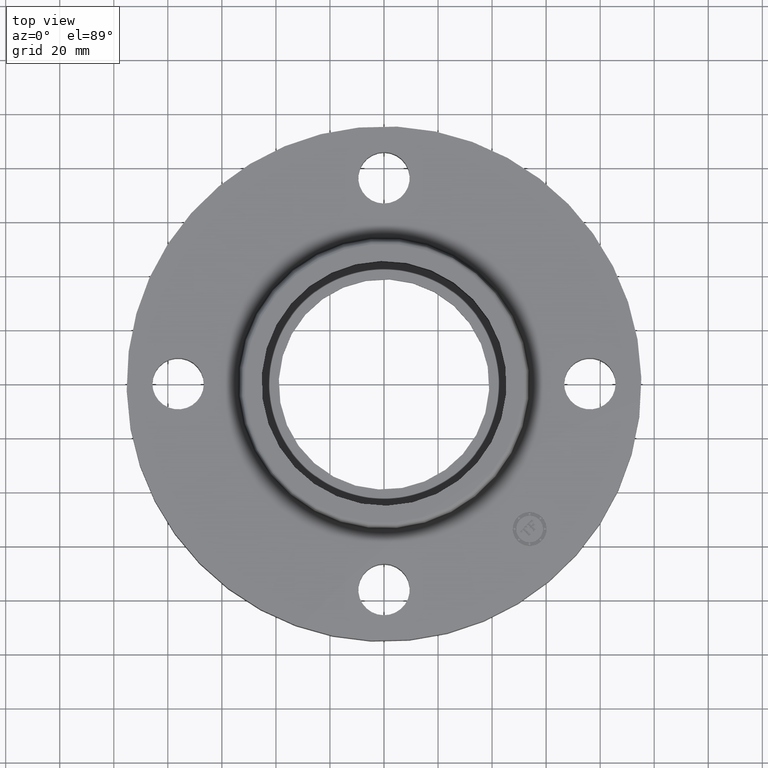
[diagram: clean part render]
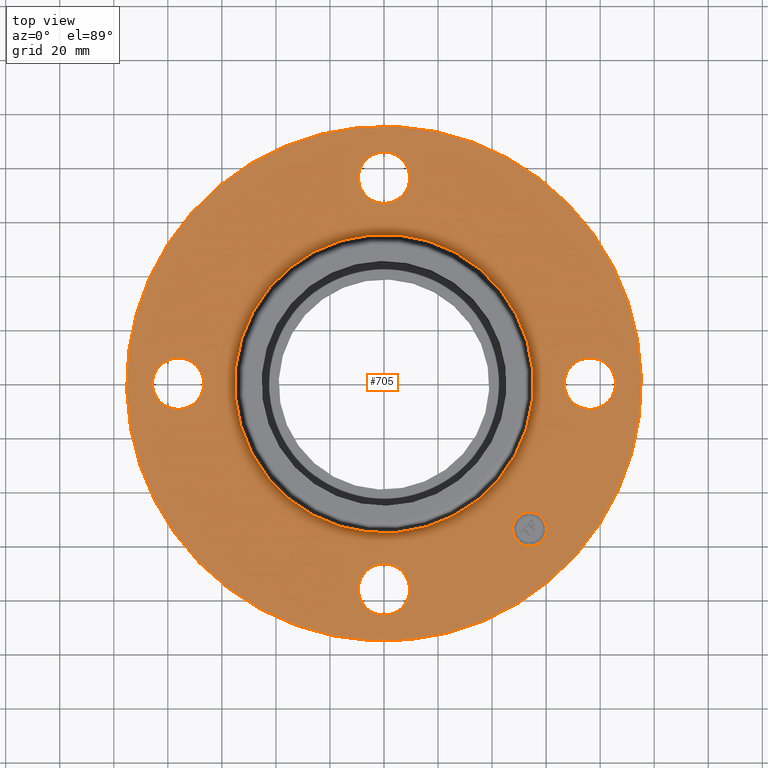
[diagram: same view with one face highlighted and labeled with its STEP entity id]
A machine part, top view. The second image highlights one B-rep face of the part: STEP entity #705.
In plain terms, the highlighted planar face has unit normal (0, 0, -1).
Its self-contained STEP definition (entity closure, byte-faithful):
#257=AXIS2_PLACEMENT_3D('Circle Axis2P3D',#255,#256,$) ;
#276=AXIS2_PLACEMENT_3D('Circle Axis2P3D',#274,#275,$) ;
#293=AXIS2_PLACEMENT_3D('Circle Axis2P3D',#291,#292,$) ;
#328=AXIS2_PLACEMENT_3D('Circle Axis2P3D',#326,#327,$) ;
#478=AXIS2_PLACEMENT_3D('Circle Axis2P3D',#476,#477,$) ;
#490=AXIS2_PLACEMENT_3D('Circle Axis2P3D',#488,#489,$) ;
#521=AXIS2_PLACEMENT_3D('Circle Axis2P3D',#519,#520,$) ;
#533=AXIS2_PLACEMENT_3D('Circle Axis2P3D',#531,#532,$) ;
#564=AXIS2_PLACEMENT_3D('Circle Axis2P3D',#562,#563,$) ;
#576=AXIS2_PLACEMENT_3D('Circle Axis2P3D',#574,#575,$) ;
#607=AXIS2_PLACEMENT_3D('Circle Axis2P3D',#605,#606,$) ;
#619=AXIS2_PLACEMENT_3D('Circle Axis2P3D',#617,#618,$) ;
#661=AXIS2_PLACEMENT_3D('Plane Axis2P3D',#658,#659,#660) ;
#689=AXIS2_PLACEMENT_3D('Circle Axis2P3D',#687,#688,$) ;
#698=AXIS2_PLACEMENT_3D('Circle Axis2P3D',#696,#697,$) ;
#252=CARTESIAN_POINT('Vertex',(-1.79784576977,-3.2909346071,0.880000000004)) ;
#255=CARTESIAN_POINT('Axis2P3D Location',(0.,0.,0.880000000004)) ;
#259=CARTESIAN_POINT('Vertex',(1.79784576977,3.2909346071,0.880000000004)) ;
#274=CARTESIAN_POINT('Axis2P3D Location',(0.,0.,0.880000000004)) ;
#291=CARTESIAN_POINT('Axis2P3D Location',(0.,0.,0.880000000004)) ;
#295=CARTESIAN_POINT('Vertex',(1.0429164171,1.90904569627,0.880000000004)) ;
#297=CARTESIAN_POINT('Vertex',(-1.0429164171,-1.90904569627,0.880000000004)) ;
#326=CARTESIAN_POINT('Axis2P3D Location',(0.,0.,0.880000000004)) ;
#466=CARTESIAN_POINT('Vertex',(0.179784576977,3.32909346072,0.880000000004)) ;
#473=CARTESIAN_POINT('Vertex',(-0.179784576977,2.6709065393,0.880000000004)) ;
#476=CARTESIAN_POINT('Axis2P3D Location',(-5.51091059619E-016,3.00000000001,0.880000000004)) ;
#488=CARTESIAN_POINT('Axis2P3D Location',(-5.51091059619E-016,3.00000000001,0.880000000004)) ;
#509=CARTESIAN_POINT('Vertex',(-3.32909346072,0.179784576977,0.880000000004)) ;
#516=CARTESIAN_POINT('Vertex',(-2.6709065393,-0.179784576977,0.880000000004)) ;
#519=CARTESIAN_POINT('Axis2P3D Location',(-3.00000000001,-3.67394039746E-016,0.880000000004)) ;
#531=CARTESIAN_POINT('Axis2P3D Location',(-3.00000000001,-3.67394039746E-016,0.880000000004)) ;
#552=CARTESIAN_POINT('Vertex',(-0.179784576977,-3.32909346072,0.880000000004)) ;
#559=CARTESIAN_POINT('Vertex',(0.179784576977,-2.6709065393,0.880000000004)) ;
#562=CARTESIAN_POINT('Axis2P3D Location',(-3.7578544923E-016,-3.00000000001,0.880000000004)) ;
#574=CARTESIAN_POINT('Axis2P3D Location',(-3.7578544923E-016,-3.00000000001,0.880000000004)) ;
#595=CARTESIAN_POINT('Vertex',(2.6709065393,0.179784576977,0.880000000004)) ;
#602=CARTESIAN_POINT('Vertex',(3.32909346072,-0.179784576977,0.880000000004)) ;
#605=CARTESIAN_POINT('Axis2P3D Location',(3.00000000001,0.,0.880000000004)) ;
#617=CARTESIAN_POINT('Axis2P3D Location',(3.00000000001,0.,0.880000000004)) ;
#658=CARTESIAN_POINT('Axis2P3D Location',(0.,3.75000000001,0.880000000004)) ;
#687=CARTESIAN_POINT('Axis2P3D Location',(2.12132034357,-2.12132034357,0.880000000004)) ;
#691=CARTESIAN_POINT('Vertex',(2.29632927191,-1.94631141522,0.880000000004)) ;
#693=CARTESIAN_POINT('Vertex',(1.94631141522,-2.29632927191,0.880000000004)) ;
#696=CARTESIAN_POINT('Axis2P3D Location',(2.12132034357,-2.12132034357,0.880000000004)) ;
#256=DIRECTION('Axis2P3D Direction',(0.,0.,-0.0393700787402)) ;
#275=DIRECTION('Axis2P3D Direction',(0.,0.,-0.0393700787402)) ;
#292=DIRECTION('Axis2P3D Direction',(0.,0.,-0.0393700787402)) ;
#327=DIRECTION('Axis2P3D Direction',(0.,0.,-0.0393700787402)) ;
#477=DIRECTION('Axis2P3D Direction',(0.,0.,-0.0393700787402)) ;
#489=DIRECTION('Axis2P3D Direction',(0.,0.,-0.0393700787402)) ;
#520=DIRECTION('Axis2P3D Direction',(-0.,0.,-0.0393700787402)) ;
#532=DIRECTION('Axis2P3D Direction',(-0.,0.,-0.0393700787402)) ;
#563=DIRECTION('Axis2P3D Direction',(0.,-0.,-0.0393700787402)) ;
#575=DIRECTION('Axis2P3D Direction',(0.,-0.,-0.0393700787402)) ;
#606=DIRECTION('Axis2P3D Direction',(0.,-0.,-0.0393700787402)) ;
#618=DIRECTION('Axis2P3D Direction',(0.,-0.,-0.0393700787402)) ;
#659=DIRECTION('Axis2P3D Direction',(0.,0.,-0.0393700787402)) ;
#660=DIRECTION('Axis2P3D XDirection',(0.0393700787402,0.,0.)) ;
#688=DIRECTION('Axis2P3D Direction',(0.,0.,-0.0393700787402)) ;
#697=DIRECTION('Axis2P3D Direction',(0.,0.,-0.0393700787402)) ;
#664=ORIENTED_EDGE('',*,*,#278,.F.) ;
#665=ORIENTED_EDGE('',*,*,#261,.F.) ;
#668=ORIENTED_EDGE('',*,*,#609,.T.) ;
#669=ORIENTED_EDGE('',*,*,#621,.T.) ;
#672=ORIENTED_EDGE('',*,*,#330,.T.) ;
#673=ORIENTED_EDGE('',*,*,#299,.T.) ;
#676=ORIENTED_EDGE('',*,*,#566,.T.) ;
#677=ORIENTED_EDGE('',*,*,#578,.T.) ;
#680=ORIENTED_EDGE('',*,*,#523,.T.) ;
#681=ORIENTED_EDGE('',*,*,#535,.T.) ;
#684=ORIENTED_EDGE('',*,*,#480,.T.) ;
#685=ORIENTED_EDGE('',*,*,#492,.T.) ;
#702=ORIENTED_EDGE('',*,*,#695,.T.) ;
#703=ORIENTED_EDGE('',*,*,#700,.T.) ;
#670=FACE_BOUND('',#667,.T.) ;
#674=FACE_BOUND('',#671,.T.) ;
#678=FACE_BOUND('',#675,.T.) ;
#682=FACE_BOUND('',#679,.T.) ;
#686=FACE_BOUND('',#683,.T.) ;
#704=FACE_BOUND('',#701,.T.) ;
#705=ADVANCED_FACE('PartBody',(#666,#670,#674,#678,#682,#686,#704),#662,.F.) ;
#258=CIRCLE('generated circle',#257,3.75000000002) ;
#277=CIRCLE('generated circle',#276,3.75000000002) ;
#294=CIRCLE('generated circle',#293,2.17534597788) ;
#329=CIRCLE('generated circle',#328,2.17534597788) ;
#479=CIRCLE('generated circle',#478,0.375000000002) ;
#491=CIRCLE('generated circle',#490,0.375000000002) ;
#522=CIRCLE('generated circle',#521,0.375000000001) ;
#534=CIRCLE('generated circle',#533,0.375000000001) ;
#565=CIRCLE('generated circle',#564,0.375000000002) ;
#577=CIRCLE('generated circle',#576,0.375000000002) ;
#608=CIRCLE('generated circle',#607,0.375000000002) ;
#620=CIRCLE('generated circle',#619,0.375000000002) ;
#690=CIRCLE('generated circle',#689,0.247500000001) ;
#699=CIRCLE('generated circle',#698,0.247500000001) ;
#261=EDGE_CURVE('',#253,#260,#258,.T.) ;
#278=EDGE_CURVE('',#260,#253,#277,.T.) ;
#299=EDGE_CURVE('',#296,#298,#294,.T.) ;
#330=EDGE_CURVE('',#298,#296,#329,.T.) ;
#480=EDGE_CURVE('',#467,#474,#479,.T.) ;
#492=EDGE_CURVE('',#474,#467,#491,.T.) ;
#523=EDGE_CURVE('',#510,#517,#522,.T.) ;
#535=EDGE_CURVE('',#517,#510,#534,.T.) ;
#566=EDGE_CURVE('',#553,#560,#565,.T.) ;
#578=EDGE_CURVE('',#560,#553,#577,.T.) ;
#609=EDGE_CURVE('',#596,#603,#608,.T.) ;
#621=EDGE_CURVE('',#603,#596,#620,.T.) ;
#695=EDGE_CURVE('',#692,#694,#690,.T.) ;
#700=EDGE_CURVE('',#694,#692,#699,.T.) ;
#663=EDGE_LOOP('',(#664,#665)) ;
#667=EDGE_LOOP('',(#668,#669)) ;
#671=EDGE_LOOP('',(#672,#673)) ;
#675=EDGE_LOOP('',(#676,#677)) ;
#679=EDGE_LOOP('',(#680,#681)) ;
#683=EDGE_LOOP('',(#684,#685)) ;
#701=EDGE_LOOP('',(#702,#703)) ;
#666=FACE_OUTER_BOUND('',#663,.T.) ;
#662=PLANE('',#661) ;
#253=VERTEX_POINT('',#252) ;
#260=VERTEX_POINT('',#259) ;
#296=VERTEX_POINT('',#295) ;
#298=VERTEX_POINT('',#297) ;
#467=VERTEX_POINT('',#466) ;
#474=VERTEX_POINT('',#473) ;
#510=VERTEX_POINT('',#509) ;
#517=VERTEX_POINT('',#516) ;
#553=VERTEX_POINT('',#552) ;
#560=VERTEX_POINT('',#559) ;
#596=VERTEX_POINT('',#595) ;
#603=VERTEX_POINT('',#602) ;
#692=VERTEX_POINT('',#691) ;
#694=VERTEX_POINT('',#693) ;